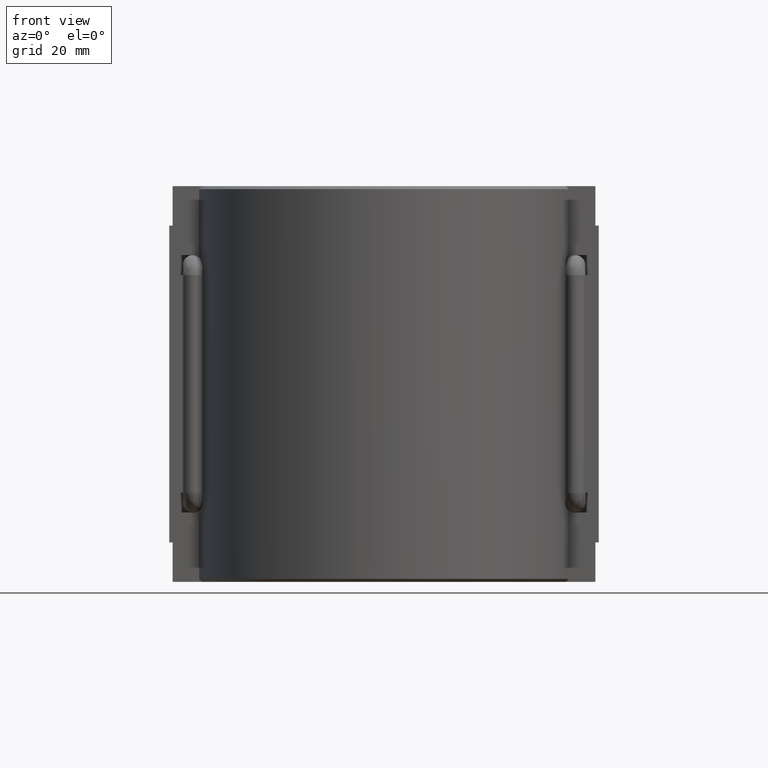
[diagram: clean part render]
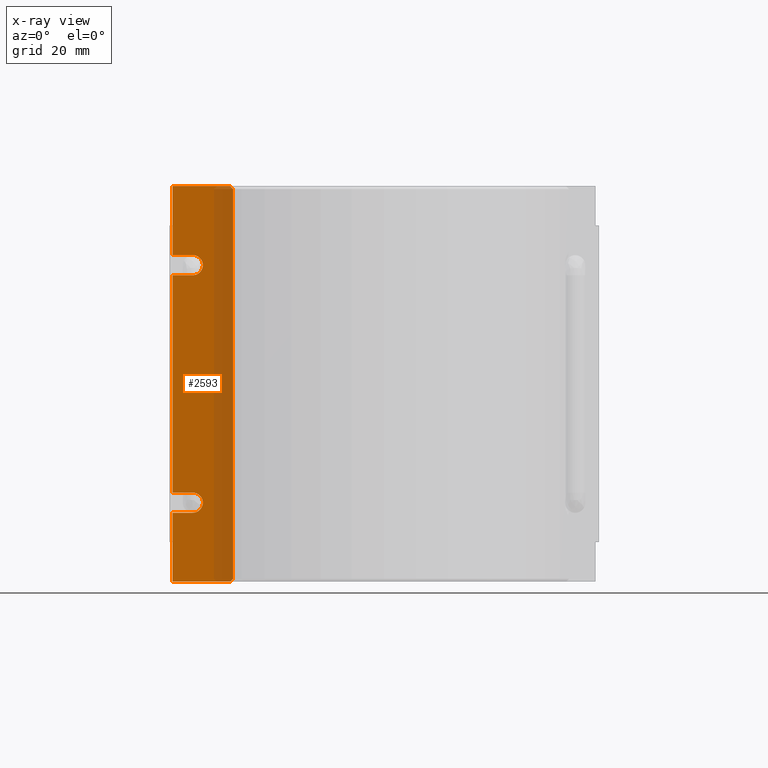
[diagram: x-ray — body ghosted, one internal face saturated and labeled with its STEP entity id]
A machine part, front view, then the same camera in x-ray: the body is ghosted and one INTERNAL B-rep face — a face not visible from any outside direction — is saturated and labeled: STEP entity #2593.
In plain terms, the highlighted planar face has unit normal (0, -1, 0).
Its self-contained STEP definition (entity closure, byte-faithful):
#44=(
BOUNDED_CURVE()
B_SPLINE_CURVE(2,(#5084,#5085,#5086),.UNSPECIFIED.,.F.,.F.)
B_SPLINE_CURVE_WITH_KNOTS((3,3),(12.9752661651118,12.9754075080515),
 .UNSPECIFIED.)
CURVE()
GEOMETRIC_REPRESENTATION_ITEM()
RATIONAL_B_SPLINE_CURVE((1.01997780244167,1.00998901003253,1.))
REPRESENTATION_ITEM('')
);
#45=(
BOUNDED_CURVE()
B_SPLINE_CURVE(2,(#5090,#5091,#5092),.UNSPECIFIED.,.F.,.F.)
B_SPLINE_CURVE_WITH_KNOTS((3,3),(0.,0.000141342939775842),.UNSPECIFIED.)
CURVE()
GEOMETRIC_REPRESENTATION_ITEM()
RATIONAL_B_SPLINE_CURVE((1.,1.00998901003256,1.01997780244173))
REPRESENTATION_ITEM('')
);
#294=FACE_OUTER_BOUND('',#478,.T.);
#478=EDGE_LOOP('',(#2082,#2083,#2084,#2085,#2086,#2087,#2088,#2089,#2090,
#2091,#2092,#2093,#2094,#2095));
#703=LINE('',#5045,#902);
#705=LINE('',#5049,#904);
#708=LINE('',#5055,#907);
#711=LINE('',#5061,#910);
#716=LINE('',#5078,#915);
#717=LINE('',#5080,#916);
#718=LINE('',#5082,#917);
#719=LINE('',#5088,#918);
#720=LINE('',#5094,#919);
#721=LINE('',#5095,#920);
#902=VECTOR('',#3258,6.);
#904=VECTOR('',#3262,6.);
#907=VECTOR('',#3267,6.);
#910=VECTOR('',#3272,6.);
#915=VECTOR('',#3281,64.8);
#916=VECTOR('',#3282,20.6);
#917=VECTOR('',#3283,17.1000272331236);
#918=VECTOR('',#3284,116.2);
#919=VECTOR('',#3285,17.1000272331236);
#920=VECTOR('',#3286,20.6);
#1012=CIRCLE('',#2763,3.);
#1015=CIRCLE('',#2768,3.);
#1208=VERTEX_POINT('',#4932);
#1209=VERTEX_POINT('',#4934);
#1212=VERTEX_POINT('',#4943);
#1213=VERTEX_POINT('',#4945);
#1232=VERTEX_POINT('',#5044);
#1233=VERTEX_POINT('',#5048);
#1235=VERTEX_POINT('',#5054);
#1237=VERTEX_POINT('',#5060);
#1242=VERTEX_POINT('',#5079);
#1243=VERTEX_POINT('',#5081);
#1244=VERTEX_POINT('',#5083);
#1245=VERTEX_POINT('',#5087);
#1246=VERTEX_POINT('',#5089);
#1247=VERTEX_POINT('',#5093);
#1513=EDGE_CURVE('',#1208,#1209,#1012,.T.);
#1517=EDGE_CURVE('',#1213,#1212,#1015,.T.);
#1542=EDGE_CURVE('',#1209,#1232,#703,.T.);
#1544=EDGE_CURVE('',#1233,#1208,#705,.T.);
#1547=EDGE_CURVE('',#1212,#1235,#708,.T.);
#1550=EDGE_CURVE('',#1237,#1213,#711,.T.);
#1557=EDGE_CURVE('',#1237,#1232,#716,.T.);
#1558=EDGE_CURVE('',#1242,#1235,#717,.T.);
#1559=EDGE_CURVE('',#1243,#1242,#718,.T.);
#1560=EDGE_CURVE('',#1244,#1243,#44,.T.);
#1561=EDGE_CURVE('',#1245,#1244,#719,.T.);
#1562=EDGE_CURVE('',#1246,#1245,#45,.T.);
#1563=EDGE_CURVE('',#1247,#1246,#720,.T.);
#1564=EDGE_CURVE('',#1233,#1247,#721,.T.);
#2082=ORIENTED_EDGE('',*,*,#1544,.T.);
#2083=ORIENTED_EDGE('',*,*,#1513,.T.);
#2084=ORIENTED_EDGE('',*,*,#1542,.T.);
#2085=ORIENTED_EDGE('',*,*,#1557,.F.);
#2086=ORIENTED_EDGE('',*,*,#1550,.T.);
#2087=ORIENTED_EDGE('',*,*,#1517,.T.);
#2088=ORIENTED_EDGE('',*,*,#1547,.T.);
#2089=ORIENTED_EDGE('',*,*,#1558,.F.);
#2090=ORIENTED_EDGE('',*,*,#1559,.F.);
#2091=ORIENTED_EDGE('',*,*,#1560,.F.);
#2092=ORIENTED_EDGE('',*,*,#1561,.F.);
#2093=ORIENTED_EDGE('',*,*,#1562,.F.);
#2094=ORIENTED_EDGE('',*,*,#1563,.F.);
#2095=ORIENTED_EDGE('',*,*,#1564,.F.);
#2474=PLANE('',#2791);
#2593=ADVANCED_FACE('',(#294),#2474,.F.);
#2763=AXIS2_PLACEMENT_3D('',#4936,#3198,#3199);
#2768=AXIS2_PLACEMENT_3D('',#4946,#3209,#3210);
#2791=AXIS2_PLACEMENT_3D('',#5077,#3279,#3280);
#3198=DIRECTION('center_axis',(2.75352932694731E-19,-1.,0.));
#3199=DIRECTION('ref_axis',(1.,0.,0.));
#3209=DIRECTION('center_axis',(2.75352932694731E-19,-1.,0.));
#3210=DIRECTION('ref_axis',(1.,0.,0.));
#3258=DIRECTION('',(-1.,-2.75352932694731E-19,0.));
#3262=DIRECTION('',(1.,2.75352932694731E-19,0.));
#3267=DIRECTION('',(-1.,-2.75352932694731E-19,0.));
#3272=DIRECTION('',(1.,2.75352932694731E-19,0.));
#3279=DIRECTION('center_axis',(2.75352932694731E-19,-1.,0.));
#3280=DIRECTION('ref_axis',(1.,0.,0.));
#3281=DIRECTION('',(0.,0.,-1.));
#3282=DIRECTION('',(0.,0.,-1.));
#3283=DIRECTION('',(-1.,-2.75352932694731E-19,0.));
#3284=DIRECTION('',(0.,0.,1.));
#3285=DIRECTION('',(1.,2.75352932694731E-19,0.));
#3286=DIRECTION('',(0.,0.,-1.));
#4932=CARTESIAN_POINT('',(-57.,-0.0499999999999989,-38.4));
#4934=CARTESIAN_POINT('',(-57.,-0.0499999999999989,-32.4));
#4936=CARTESIAN_POINT('Origin',(-57.,-0.0499999999999989,-35.4));
#4943=CARTESIAN_POINT('',(-57.,-0.0499999999999989,38.4));
#4945=CARTESIAN_POINT('',(-57.,-0.0499999999999989,32.4));
#4946=CARTESIAN_POINT('Origin',(-57.,-0.0499999999999989,35.4));
#5044=CARTESIAN_POINT('',(-63.,-0.0499999999999989,-32.4));
#5045=CARTESIAN_POINT('',(-60.,-0.05,-32.4));
#5048=CARTESIAN_POINT('',(-63.,-0.0499999999999989,-38.4));
#5049=CARTESIAN_POINT('',(-63.,-0.05,-38.4));
#5054=CARTESIAN_POINT('',(-63.,-0.0499999999999989,38.4));
#5055=CARTESIAN_POINT('',(-60.,-0.05,38.4));
#5060=CARTESIAN_POINT('',(-63.,-0.0499999999999989,32.4));
#5061=CARTESIAN_POINT('',(-63.,-0.05,32.4));
#5077=CARTESIAN_POINT('Origin',(-63.,-0.05,-59.));
#5078=CARTESIAN_POINT('',(-63.,-0.0499999999999989,-29.5));
#5079=CARTESIAN_POINT('',(-63.,-0.05,59.));
#5080=CARTESIAN_POINT('',(-63.,-0.0499999999999989,-29.5));
#5081=CARTESIAN_POINT('',(-45.8999727668764,-0.05,59.));
#5082=CARTESIAN_POINT('',(-61.3413625432881,-0.05,59.));
#5083=CARTESIAN_POINT('',(-44.9999722222136,-0.05,58.1));
#5084=CARTESIAN_POINT('Ctrl Pts',(-44.9999722222136,-0.05,58.1));
#5085=CARTESIAN_POINT('Ctrl Pts',(-45.4455170463028,-0.05,58.5455445490614));
#5086=CARTESIAN_POINT('Ctrl Pts',(-45.8999727668765,-0.05,59.));
#5087=CARTESIAN_POINT('',(-44.9999722222136,-0.05,-58.1));
#5088=CARTESIAN_POINT('',(-44.9999722222136,-0.05,0.));
#5089=CARTESIAN_POINT('',(-45.8999727668764,-0.05,-59.));
#5090=CARTESIAN_POINT('Ctrl Pts',(-45.8999727668765,-0.05,-59.));
#5091=CARTESIAN_POINT('Ctrl Pts',(-45.4455170463041,-0.05,-58.5455445490628));
#5092=CARTESIAN_POINT('Ctrl Pts',(-44.9999722222136,-0.05,-58.1));
#5093=CARTESIAN_POINT('',(-63.,-0.05,-59.));
#5094=CARTESIAN_POINT('',(-61.3413625432881,-0.05,-59.));
#5095=CARTESIAN_POINT('',(-63.,-0.0499999999999989,-29.5));